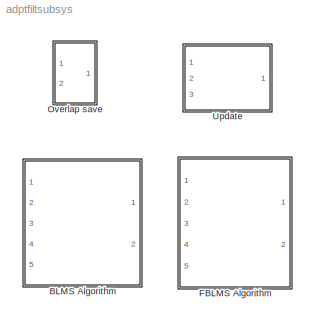
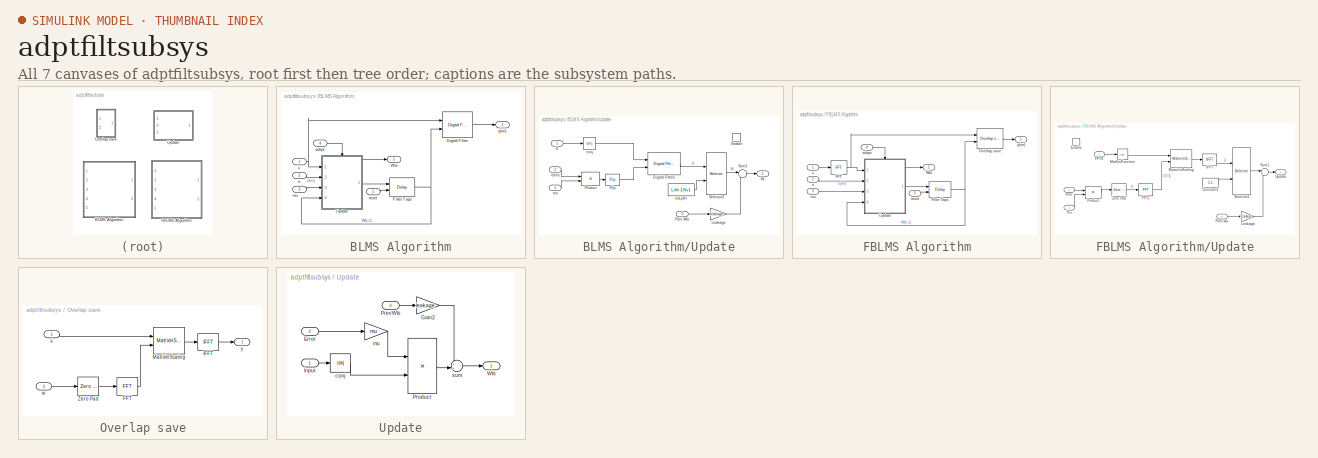
[diagram: thumbnail index - all 7 canvases of the model, root first then tree order]
MODEL adptfiltsubsys
KIND library
BLOCK [SubSystem] BLMS Algorithm
  MaskDescription = Block LMS algorithm.
  MaskEnableString = on
  MaskIconFrame = on
  MaskIconOpaque = on
  MaskIconRotate = none
  MaskIconUnits = autoscale
  MaskInitialization = dspblkblmsalgo('blms');
  MaskPromptString = Output filter weights
  MaskSelfModifiable = on
  MaskStyleString = checkbox
  MaskToolTipString = on
  MaskTunableValueString = off
  MaskType = BLMS Algorithm
  MaskValueString = on
  MaskVariables = weights_algo=@1;
  MaskVisibilityString = on
  Ports = [5, 2]
  TreatAsAtomicUnit = off
BLOCK [Reference] BLMS Algorithm/Digital Filter  REF=dsparch4/Digital Filter
  AllPoleFiltStruct = Direct form
  BiQuadCoeffs = [1 0.3 0.4 1 0.1 0.2]
  CoeffSource = Input port(s)
  DenCoeffs = [1 0.1]
  FIRFiltStruct = Direct form
  FiltPerSampPopup = One filter per frame
  IC = 0
  ICden = 0
  ICnum = 0
  IIRFiltStruct = Direct form II transposed
  LatticeCoeffs = [0.2 0.4]
  NumCoeffs = [1 2]
  Ports = [2, 1]
  SourceBlock = dsparch4/Digital Filter
  SourceType = Digital Filter
  TypePopup = FIR (all zeros)
  accumFracLength = 30
  accumMode = Same as product output
  accumWordLength = 40
  additionalParams = off
  allowOverrides = off
  denIgnore = on
  firstCoeffFracLength = 15
  firstCoeffMode = Same as input
  firstCoeffWordLength = 16
  memoryFracLength = 14
  memoryMode = Same as input
  memoryWordLength = 16
  outputFracLength = 15
  outputMode = Same as accumulator
  outputWordLength = 16
  overflowMode = off
  prodOutputFracLength = 30
  prodOutputMode = Same as input
  prodOutputWordLength = 32
  roundingMode = Floor
  secondCoeffFracLength = 15
  secondCoeffMode = Same as numerator
  secondCoeffWordLength = 16
  showAcc = off
  showCoeff = off
  showMem = off
  showMpy = off
  showOut = off
  thirdCoeffFracLength = 15
  thirdCoeffMode = Same as input
  thirdCoeffWordLength = 16
BLOCK [Reference] BLMS Algorithm/Filter Taps  REF=dspsigops/Delay
  Ports = [2, 1]
  SourceBlock = dspsigops/Delay
  SourceType = Delay
  delay = L
  dif_ic_for_ch = off
  dif_ic_for_dly = off
  dly_unit = Samples
  ic = ic
  ic_detail = on
  reset_popup = Non-zero sample
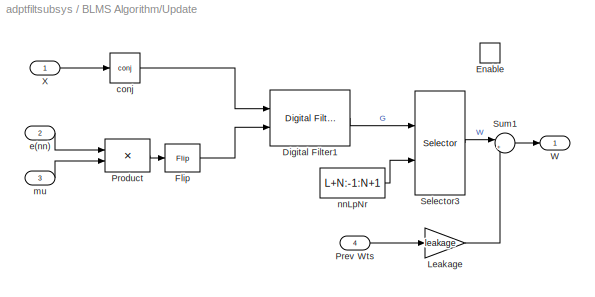
BLOCK [SubSystem] BLMS Algorithm/Update
  Ports = [4, 1, 1]
  TreatAsAtomicUnit = off
BLOCK [Reference] BLMS Algorithm/Update/Digital Filter1  REF=dsparch4/Digital Filter
  AllPoleFiltStruct = Direct form
  BiQuadCoeffs = [1 0.3 0.4 1 0.1 0.2]
  CoeffSource = Input port(s)
  DenCoeffs = [1 0.1]
  FIRFiltStruct = Direct form
  FiltPerSampPopup = One filter per frame
  IC = 0
  ICden = 0
  ICnum = 0
  IIRFiltStruct = Direct form II transposed
  LatticeCoeffs = [0.2 0.4]
  NumCoeffs = [1 2]
  Ports = [2, 1]
  SourceBlock = dsparch4/Digital Filter
  SourceType = Digital Filter
  TypePopup = FIR (all zeros)
  accumFracLength = 30
  accumMode = Same as product output
  accumWordLength = 40
  additionalParams = off
  allowOverrides = on
  denIgnore = on
  firstCoeffFracLength = 15
  firstCoeffMode = Same as input
  firstCoeffWordLength = 16
  memoryFracLength = 14
  memoryMode = Same as input
  memoryWordLength = 16
  outputFracLength = 15
  outputMode = Same as input
  outputWordLength = 16
  overflowMode = off
  prodOutputFracLength = 30
  prodOutputMode = Same as input
  prodOutputWordLength = 32
  roundingMode = Floor
  secondCoeffFracLength = 15
  secondCoeffMode = Same as numerator
  secondCoeffWordLength = 16
  showAcc = off
  showCoeff = off
  showMem = off
  showMpy = off
  showOut = off
  thirdCoeffFracLength = 15
  thirdCoeffMode = Same as input
  thirdCoeffWordLength = 16
BLOCK [EnablePort] BLMS Algorithm/Update/Enable
  Ports = []
BLOCK [Reference] BLMS Algorithm/Update/Flip  REF=dspindex/Flip
  Ports = [1, 1]
  SourceBlock = dspindex/Flip
  SourceType = Flip
  dim = Columns
BLOCK [Gain] BLMS Algorithm/Update/Leakage
  Gain = leakage
BLOCK [Inport] BLMS Algorithm/Update/Prev Wts
  IconDisplay = Port number
  Port = 4
BLOCK [Product] BLMS Algorithm/Update/Product
  Ports = [2, 1]
  RndMeth = Floor
BLOCK [Selector] BLMS Algorithm/Update/Selector3
  ElementSrc = External
  Elements = [1 3]
  Ports = [2, 1]
BLOCK [Sum] BLMS Algorithm/Update/Sum1
  IconShape = round
  InputSameDT = off
  Inputs = |++
  OutDataTypeMode = Inherit via internal rule
  Ports = [2, 1]
BLOCK [Outport] BLMS Algorithm/Update/W
  BusOutputAsStruct = off
  IconDisplay = Port number
BLOCK [Inport] BLMS Algorithm/Update/X
  IconDisplay = Port number
BLOCK [Math] BLMS Algorithm/Update/conj
  Operator = conj
  Ports = [1, 1]
BLOCK [Inport] BLMS Algorithm/Update/e(nn)
  IconDisplay = Port number
  Port = 2
BLOCK [Inport] BLMS Algorithm/Update/mu
  IconDisplay = Port number
  Port = 3
BLOCK [Constant] BLMS Algorithm/Update/nnLpNr
  Value = L+N:-1:N+1
BLOCK [Outport] BLMS Algorithm/Wts
  BusOutputAsStruct = off
  IconDisplay = Port number
  Port = 2
BLOCK [Inport] BLMS Algorithm/adapt
  IconDisplay = Port number
  Port = 4
BLOCK [Inport] BLMS Algorithm/e
  IconDisplay = Port number
  Port = 2
BLOCK [Inport] BLMS Algorithm/mu
  IconDisplay = Port number
  Port = 3
BLOCK [Inport] BLMS Algorithm/reset
  IconDisplay = Port number
  Port = 5
BLOCK [Inport] BLMS Algorithm/x
  IconDisplay = Port number
BLOCK [Outport] BLMS Algorithm/y(nn)
  BusOutputAsStruct = off
  IconDisplay = Port number
BLOCK [SubSystem] FBLMS Algorithm
  MaskDescription = Fast Block LMS algorithm using FFT.
  MaskEnableString = on
  MaskIconFrame = on
  MaskIconOpaque = on
  MaskIconRotate = none
  MaskIconUnits = autoscale
  MaskInitialization = dspblkblmsalgo('fblms');
  MaskPromptString = Output filter weights
  MaskSelfModifiable = on
  MaskStyleString = checkbox
  MaskToolTipString = on
  MaskTunableValueString = off
  MaskType = FBLMS Algorithm
  MaskValueString = on
  MaskVariables = weights_algo=@1;
  MaskVisibilityString = on
  Ports = [5, 2]
  TreatAsAtomicUnit = off
BLOCK [Reference] FBLMS Algorithm/FFT  REF=dspxfrm3/FFT
  BitRevOrder = off
  CompMethod = Table lookup
  Ports = [1, 1]
  SkipNorm = off
  SourceBlock = dspxfrm3/FFT
  SourceType = FFT
  TableOpt = Speed
  accumFracLength = 24
  accumMode = Inherit via internal rule
  accumWordLength = 32
  additionalParams = off
  allowOverrides = on
  firstCoeffFracLength = 15
  firstCoeffMode = Same word length as input
  firstCoeffWordLength = 16
  outputFracLength = 12
  outputMode = Inherit via internal rule
  outputWordLength = 16
  overflowMode = off
  prodOutputFracLength = 24
  prodOutputMode = Inherit via internal rule
  prodOutputWordLength = 32
  roundingMode = Floor
BLOCK [Reference] FBLMS Algorithm/Filter Taps  REF=dspsigops/Delay
  Ports = [2, 1]
  SourceBlock = dspsigops/Delay
  SourceType = Delay
  delay = L
  dif_ic_for_ch = off
  dif_ic_for_dly = off
  dly_unit = Samples
  ic = ic
  ic_detail = on
  reset_popup = Non-zero sample
BLOCK [Reference] FBLMS Algorithm/Overlap save  REF=adptfiltsubsys/Overlap save  (lib defined in mdl_8073bbbc424e)
  Ports = [2, 1]
  ShowPortLabels = on
  SourceBlock = adptfiltsubsys/Overlap save
  SourceType = SubSystem
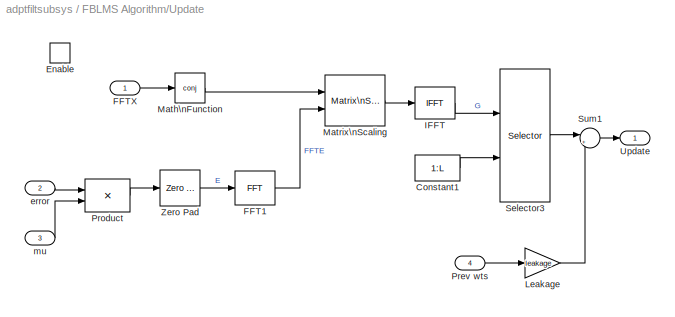
BLOCK [SubSystem] FBLMS Algorithm/Update
  Ports = [4, 1, 1]
  TreatAsAtomicUnit = off
BLOCK [Constant] FBLMS Algorithm/Update/Constant1
  Value = 1:L
BLOCK [EnablePort] FBLMS Algorithm/Update/Enable
  Ports = []
BLOCK [Reference] FBLMS Algorithm/Update/FFT1  REF=dspxfrm3/FFT
  BitRevOrder = off
  CompMethod = Table lookup
  Ports = [1, 1]
  SkipNorm = off
  SourceBlock = dspxfrm3/FFT
  SourceType = FFT
  TableOpt = Speed
  accumFracLength = 24
  accumMode = Same as product output
  accumWordLength = 32
  additionalParams = off
  allowOverrides = on
  firstCoeffFracLength = 15
  firstCoeffMode = Same word length as input
  firstCoeffWordLength = 16
  outputFracLength = 12
  outputMode = Same as input
  outputWordLength = 16
  overflowMode = off
  prodOutputFracLength = 24
  prodOutputMode = Same as input
  prodOutputWordLength = 32
  roundingMode = Floor
BLOCK [Inport] FBLMS Algorithm/Update/FFTX
  IconDisplay = Port number
BLOCK [Reference] FBLMS Algorithm/Update/IFFT  REF=dspxfrm3/IFFT
  BitRevOrder = off
  CompMethod = Table lookup
  Ports = [1, 1]
  SkipNorm = off
  SourceBlock = dspxfrm3/IFFT
  SourceType = IFFT
  TableOpt = Speed
  accumFracLength = 24
  accumMode = Same as product output
  accumWordLength = 32
  additionalParams = off
  allowOverrides = on
  cs_in = off
  firstCoeffFracLength = 15
  firstCoeffMode = Same word length as input
  firstCoeffWordLength = 16
  mode = Real
  outputFracLength = 12
  outputMode = Same as input
  outputWordLength = 16
  overflowMode = off
  prodOutputFracLength = 24
  prodOutputMode = Same as input
  prodOutputWordLength = 32
  roundingMode = Floor
BLOCK [Gain] FBLMS Algorithm/Update/Leakage
  Gain = leakage
BLOCK [Math] FBLMS Algorithm/Update/Math\nFunction
  Operator = conj
  Ports = [1, 1]
BLOCK [Reference] FBLMS Algorithm/Update/Matrix\nScaling  REF=dspmtrx3/Matrix\nScaling
  D_Source = Input port
  D_VectFromMask = [0.5 0.25]
  Ports = [2, 1]
  SourceBlock = dspmtrx3/Matrix\nScaling
  SourceType = Matrix Scaling
  accumFracLength = 30
  accumMode = Inherit via internal rule
  accumWordLength = 32
  additionalParams = off
  allowOverrides = on
  firstCoeffFracLength = 15
  firstCoeffMode = Same word length as input
  firstCoeffWordLength = 16
  mode = Scale rows (D*A)
  outputFracLength = 15
  outputMode = Same as product output
  outputWordLength = 16
  overflowMode = off
  prodOutputFracLength = 30
  prodOutputMode = Inherit via internal rule
  prodOutputWordLength = 32
  roundingMode = Floor
BLOCK [Inport] FBLMS Algorithm/Update/Prev wts
  IconDisplay = Port number
  Port = 4
BLOCK [Product] FBLMS Algorithm/Update/Product
  Ports = [2, 1]
  RndMeth = Floor
BLOCK [Selector] FBLMS Algorithm/Update/Selector3
  ElementSrc = External
  Elements = [1 3]
  Ports = [2, 1]
BLOCK [Sum] FBLMS Algorithm/Update/Sum1
  IconShape = round
  InputSameDT = off
  Inputs = |++
  OutDataTypeMode = Inherit via internal rule
  Ports = [2, 1]
BLOCK [Outport] FBLMS Algorithm/Update/Update
  BusOutputAsStruct = off
  IconDisplay = Port number
BLOCK [Reference] FBLMS Algorithm/Update/Zero Pad  REF=dspsigops/Zero Pad
  Ports = [1, 1]
  SourceBlock = dspsigops/Zero Pad
  SourceType = Zero Pad
  numOutCols = 1
  numOutRows = L+N
  padNumOutColsSpecMethod = User-specified
  padNumOutRowsSpecMethod = User-specified
  padSigAt = Beginning
  trunc_flag = Error
  zpadAlong = Columns
BLOCK [Inport] FBLMS Algorithm/Update/error
  IconDisplay = Port number
  Port = 2
BLOCK [Inport] FBLMS Algorithm/Update/mu
  IconDisplay = Port number
  Port = 3
BLOCK [Outport] FBLMS Algorithm/Wts
  BusOutputAsStruct = off
  IconDisplay = Port number
  Port = 2
BLOCK [Inport] FBLMS Algorithm/adapt
  IconDisplay = Port number
  Port = 4
BLOCK [Inport] FBLMS Algorithm/e
  IconDisplay = Port number
  Port = 2
BLOCK [Inport] FBLMS Algorithm/mu
  IconDisplay = Port number
  Port = 3
BLOCK [Inport] FBLMS Algorithm/reset
  IconDisplay = Port number
  Port = 5
BLOCK [Inport] FBLMS Algorithm/x
  IconDisplay = Port number
BLOCK [Outport] FBLMS Algorithm/y(nn)
  BusOutputAsStruct = off
  IconDisplay = Port number
BLOCK [SubSystem] Overlap save
  Ports = [2, 1]
  TreatAsAtomicUnit = off
BLOCK [Reference] Overlap save/FFT  REF=dspxfrm3/FFT
  BitRevOrder = off
  CompMethod = Table lookup
  Ports = [1, 1]
  SkipNorm = off
  SourceBlock = dspxfrm3/FFT
  SourceType = FFT
  TableOpt = Speed
  accumFracLength = 24
  accumMode = Inherit via internal rule
  accumWordLength = 32
  additionalParams = off
  allowOverrides = on
  firstCoeffFracLength = 15
  firstCoeffMode = Same word length as input
  firstCoeffWordLength = 16
  outputFracLength = 12
  outputMode = Inherit via internal rule
  outputWordLength = 16
  overflowMode = off
  prodOutputFracLength = 24
  prodOutputMode = Inherit via internal rule
  prodOutputWordLength = 32
  roundingMode = Floor
BLOCK [Reference] Overlap save/IFFT  REF=dspxfrm3/IFFT
  BitRevOrder = off
  CompMethod = Table lookup
  Ports = [1, 1]
  SkipNorm = off
  SourceBlock = dspxfrm3/IFFT
  SourceType = IFFT
  TableOpt = Speed
  accumFracLength = 24
  accumMode = Inherit via internal rule
  accumWordLength = 32
  additionalParams = off
  allowOverrides = on
  cs_in = off
  firstCoeffFracLength = 15
  firstCoeffMode = Same word length as input
  firstCoeffWordLength = 16
  mode = Real
  outputFracLength = 12
  outputMode = Inherit via internal rule
  outputWordLength = 16
  overflowMode = off
  prodOutputFracLength = 24
  prodOutputMode = Inherit via internal rule
  prodOutputWordLength = 32
  roundingMode = Floor
BLOCK [Reference] Overlap save/Matrix\nScaling  REF=dspmtrx3/Matrix\nScaling
  D_Source = Input port
  D_VectFromMask = [0.5 0.25]
  Ports = [2, 1]
  SourceBlock = dspmtrx3/Matrix\nScaling
  SourceType = Matrix Scaling
  accumFracLength = 30
  accumMode = Inherit via internal rule
  accumWordLength = 32
  additionalParams = off
  allowOverrides = on
  firstCoeffFracLength = 15
  firstCoeffMode = Same word length as input
  firstCoeffWordLength = 16
  mode = Scale rows (D*A)
  outputFracLength = 15
  outputMode = Same as product output
  outputWordLength = 16
  overflowMode = off
  prodOutputFracLength = 30
  prodOutputMode = Inherit via internal rule
  prodOutputWordLength = 32
  roundingMode = Floor
BLOCK [Reference] Overlap save/Zero Pad  REF=dspsigops/Zero Pad
  Ports = [1, 1]
  SourceBlock = dspsigops/Zero Pad
  SourceType = Zero Pad
  numOutCols = 1
  numOutRows = L+N
  padNumOutColsSpecMethod = User-specified
  padNumOutRowsSpecMethod = User-specified
  padSigAt = End
  trunc_flag = None
  zpadAlong = Columns
BLOCK [Inport] Overlap save/w
  IconDisplay = Port number
  Port = 2
BLOCK [Inport] Overlap save/x
  IconDisplay = Port number
BLOCK [Outport] Overlap save/y
  BusOutputAsStruct = off
  IconDisplay = Port number
BLOCK [SubSystem] Update
  MaskCallbackString = |dspblklmsupdate('stepflag');|||dspblklmsupdate('init');|
  MaskDescription = Weight update equlation for LMS based filters.
  MaskDisplay = disp(s);
  MaskEnableString = on,on,on,on,on,on
  MaskIconFrame = on
  MaskIconOpaque = off
  MaskIconRotate = none
  MaskIconUnits = autoscale
  MaskInitialization = s=dspblklmsupdate('init');
  MaskPromptString = Algorithm:|Specify step-size via:|Step-size, mu:|Leakage factor (0 to 1):|Enable/disable adaptation via input port|Initial value of filter weights:
  MaskSelfModifiable = on
  MaskStyleString = popup(LMS|Normalized LMS|Sign-Error LMS|Sign-Data LMS|Sign-Sign LMS),popup(Dialog box|Input port),edit,edit,checkbox,edit
  MaskTabNameString = ,,,,,
  MaskToolTipString = on,on,on,on,on,on
  MaskTunableValueString = off,off,on,on,off,off
  MaskType = LMS based weight updates
  MaskValueString = LMS|Dialog box|0.1|1.0|off|0
  MaskVarAliasString = ,,,,,
  MaskVariables = Algo=@1;stepflag=@2;mu=@3;leakage=@4;Adapt=@5;icw=@6;
  MaskVisibilityString = on,on,on,on,on,on
  Ports = [3, 1]
  TreatAsAtomicUnit = off
BLOCK [Inport] Update/Error
  IconDisplay = Port number
  Port = 2
BLOCK [Gain] Update/Gain2
  Gain = leakage
BLOCK [Inport] Update/Input
  IconDisplay = Port number
BLOCK [Inport] Update/PrevWts
  IconDisplay = Port number
  Port = 3
BLOCK [Product] Update/Product
  InputSameDT = off
  OutDataTypeMode = Inherit via internal rule
  Ports = [2, 1]
  RndMeth = Floor
BLOCK [Outport] Update/Wts
  BusOutputAsStruct = off
  IconDisplay = Port number
  InitialOutput = icw(:)
BLOCK [Math] Update/conj
  Operator = conj
  Ports = [1, 1]
BLOCK [Gain] Update/mu
  Gain = mu
BLOCK [Sum] Update/sum
  IconShape = round
  Inputs = ++|
  Ports = [2, 1]
LINE BLMS Algorithm/Digital Filter:1 -> BLMS Algorithm/y(nn):1
NET BLMS Algorithm/Filter Taps:1 -> BLMS Algorithm/Digital Filter:2, BLMS Algorithm/Update:4
LINE BLMS Algorithm/Update/Digital Filter1:1 -> BLMS Algorithm/Update/Selector3:1
LINE BLMS Algorithm/Update/Flip:1 -> BLMS Algorithm/Update/Digital Filter1:2
LINE BLMS Algorithm/Update/Leakage:1 -> BLMS Algorithm/Update/Sum1:2
LINE BLMS Algorithm/Update/Prev Wts:1 -> BLMS Algorithm/Update/Leakage:1
LINE BLMS Algorithm/Update/Product:1 -> BLMS Algorithm/Update/Flip:1
LINE BLMS Algorithm/Update/Selector3:1 -> BLMS Algorithm/Update/Sum1:1
LINE BLMS Algorithm/Update/Sum1:1 -> BLMS Algorithm/Update/W:1
LINE BLMS Algorithm/Update/X:1 -> BLMS Algorithm/Update/conj:1
LINE BLMS Algorithm/Update/conj:1 -> BLMS Algorithm/Update/Digital Filter1:1
LINE BLMS Algorithm/Update/e(nn):1 -> BLMS Algorithm/Update/Product:1
LINE BLMS Algorithm/Update/mu:1 -> BLMS Algorithm/Update/Product:2
LINE BLMS Algorithm/Update/nnLpNr:1 -> BLMS Algorithm/Update/Selector3:2
NET BLMS Algorithm/Update:1 -> BLMS Algorithm/Filter Taps:1, BLMS Algorithm/Wts:1
LINE BLMS Algorithm/adapt:1 -> BLMS Algorithm/Update:enable
LINE BLMS Algorithm/e:1 -> BLMS Algorithm/Update:2
LINE BLMS Algorithm/mu:1 -> BLMS Algorithm/Update:3
LINE BLMS Algorithm/reset:1 -> BLMS Algorithm/Filter Taps:2
NET BLMS Algorithm/x:1 -> BLMS Algorithm/Digital Filter:1, BLMS Algorithm/Update:1
NET FBLMS Algorithm/FFT:1 -> FBLMS Algorithm/Overlap save:1, FBLMS Algorithm/Update:1
NET FBLMS Algorithm/Filter Taps:1 -> FBLMS Algorithm/Overlap save:2, FBLMS Algorithm/Update:4
LINE FBLMS Algorithm/Overlap save:1 -> FBLMS Algorithm/y(nn):1
LINE FBLMS Algorithm/Update/Constant1:1 -> FBLMS Algorithm/Update/Selector3:2
LINE FBLMS Algorithm/Update/FFT1:1 -> FBLMS Algorithm/Update/Matrix\nScaling:2
LINE FBLMS Algorithm/Update/FFTX:1 -> FBLMS Algorithm/Update/Math\nFunction:1
LINE FBLMS Algorithm/Update/IFFT:1 -> FBLMS Algorithm/Update/Selector3:1
LINE FBLMS Algorithm/Update/Leakage:1 -> FBLMS Algorithm/Update/Sum1:2
LINE FBLMS Algorithm/Update/Math\nFunction:1 -> FBLMS Algorithm/Update/Matrix\nScaling:1
LINE FBLMS Algorithm/Update/Matrix\nScaling:1 -> FBLMS Algorithm/Update/IFFT:1
LINE FBLMS Algorithm/Update/Prev wts:1 -> FBLMS Algorithm/Update/Leakage:1
LINE FBLMS Algorithm/Update/Product:1 -> FBLMS Algorithm/Update/Zero Pad:1
LINE FBLMS Algorithm/Update/Selector3:1 -> FBLMS Algorithm/Update/Sum1:1
LINE FBLMS Algorithm/Update/Sum1:1 -> FBLMS Algorithm/Update/Update:1
LINE FBLMS Algorithm/Update/Zero Pad:1 -> FBLMS Algorithm/Update/FFT1:1
LINE FBLMS Algorithm/Update/error:1 -> FBLMS Algorithm/Update/Product:1
LINE FBLMS Algorithm/Update/mu:1 -> FBLMS Algorithm/Update/Product:2
NET FBLMS Algorithm/Update:1 -> FBLMS Algorithm/Filter Taps:1, FBLMS Algorithm/Wts:1
LINE FBLMS Algorithm/adapt:1 -> FBLMS Algorithm/Update:enable
LINE FBLMS Algorithm/e:1 -> FBLMS Algorithm/Update:2
LINE FBLMS Algorithm/mu:1 -> FBLMS Algorithm/Update:3
LINE FBLMS Algorithm/reset:1 -> FBLMS Algorithm/Filter Taps:2
LINE FBLMS Algorithm/x:1 -> FBLMS Algorithm/FFT:1
LINE Overlap save/FFT:1 -> Overlap save/Matrix\nScaling:2
LINE Overlap save/IFFT:1 -> Overlap save/y:1
LINE Overlap save/Matrix\nScaling:1 -> Overlap save/IFFT:1
LINE Overlap save/Zero Pad:1 -> Overlap save/FFT:1
LINE Overlap save/w:1 -> Overlap save/Zero Pad:1
LINE Overlap save/x:1 -> Overlap save/Matrix\nScaling:1
LINE Update/Error:1 -> Update/mu:1
LINE Update/Gain2:1 -> Update/sum:1
LINE Update/Input:1 -> Update/conj:1
LINE Update/PrevWts:1 -> Update/Gain2:1
LINE Update/Product:1 -> Update/sum:2
LINE Update/conj:1 -> Update/Product:2
LINE Update/mu:1 -> Update/Product:1
LINE Update/sum:1 -> Update/Wts:1
note: NET lines group one-source signal fan-out (src -> all destinations, sorted); 1:1 wires keep LINE
